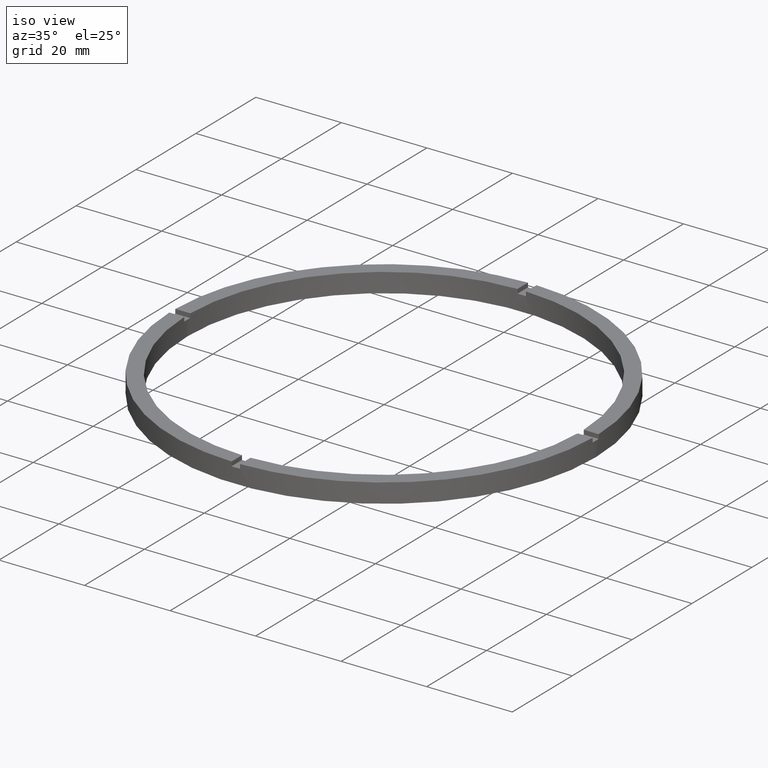
[diagram: clean part render]
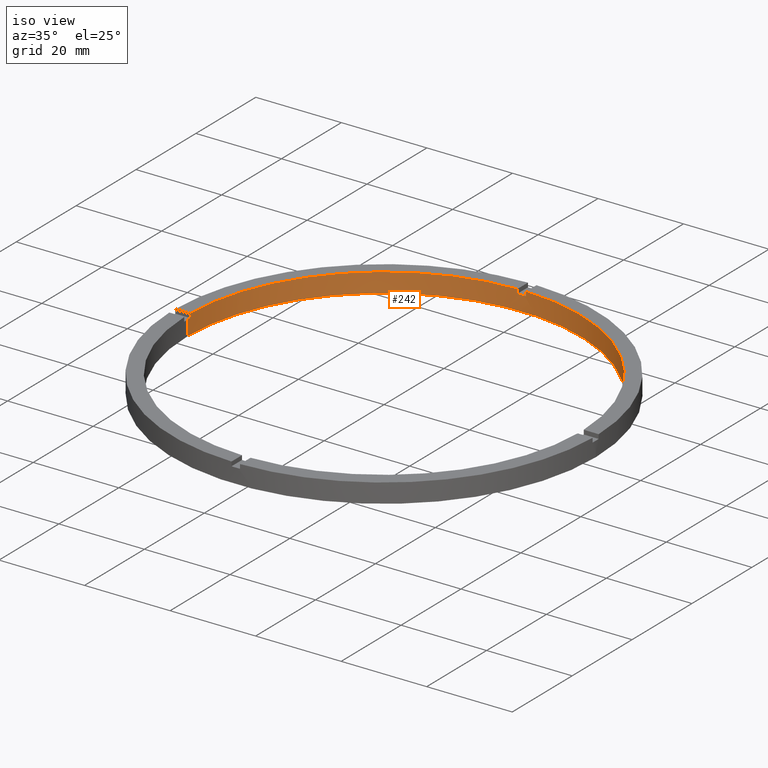
[diagram: same view with one face highlighted and labeled with its STEP entity id]
A machine part, iso view. The second image highlights one B-rep face of the part: STEP entity #242.
In plain terms, the highlighted cylindrical surface (partial cylindrical patch) has radius 46 mm, axis along (-0, -0, -1).
Its self-contained STEP definition (entity closure, byte-faithful):
#19 = CARTESIAN_POINT ( 'NONE',  ( 46.00000000000000000, 5.633375276077824704E-15, 0.000000000000000000 ) ) ;
#26 = ORIENTED_EDGE ( 'NONE', *, *, #469, .F. ) ;
#32 = CARTESIAN_POINT ( 'NONE',  ( 0.9999999999999733546, 45.98912915026767223, 4.500000000000000000 ) ) ;
#37 = EDGE_CURVE ( 'NONE', #638, #750, #271, .T. ) ;
#40 = EDGE_CURVE ( 'NONE', #169, #633, #507, .T. ) ;
#47 = AXIS2_PLACEMENT_3D ( 'NONE', #425, #534, #167 ) ;
#53 = DIRECTION ( 'NONE',  ( -0.000000000000000000, -0.000000000000000000, -1.000000000000000000 ) ) ;
#58 = CARTESIAN_POINT ( 'NONE',  ( 0.000000000000000000, 0.000000000000000000, 3.499999999999999556 ) ) ;
#65 = EDGE_CURVE ( 'NONE', #360, #742, #515, .T. ) ;
#72 = DIRECTION ( 'NONE',  ( 1.000000000000000000, 0.000000000000000000, 0.000000000000000000 ) ) ;
#74 = CARTESIAN_POINT ( 'NONE',  ( -46.00000000000000000, 0.000000000000000000, 3.499999999999999556 ) ) ;
#96 = DIRECTION ( 'NONE',  ( 0.000000000000000000, -0.000000000000000000, 1.000000000000000000 ) ) ;
#99 = EDGE_CURVE ( 'NONE', #614, #633, #457, .T. ) ;
#100 = DIRECTION ( 'NONE',  ( 1.000000000000000000, 0.000000000000000000, 0.000000000000000000 ) ) ;
#111 = CARTESIAN_POINT ( 'NONE',  ( 0.9999999999999733546, 45.98912915026767223, 3.499999999999999556 ) ) ;
#117 = AXIS2_PLACEMENT_3D ( 'NONE', #700, #443, #145 ) ;
#118 = CARTESIAN_POINT ( 'NONE',  ( -45.98912915026767223, 0.9999999999999696909, 4.500000000000000000 ) ) ;
#120 = ORIENTED_EDGE ( 'NONE', *, *, #124, .F. ) ;
#124 = EDGE_CURVE ( 'NONE', #360, #750, #722, .T. ) ;
#139 = CYLINDRICAL_SURFACE ( 'NONE', #47, 46.00000000000000000 ) ;
#142 = CARTESIAN_POINT ( 'NONE',  ( -1.000000000000026645, 45.98912915026767223, 4.500000000000000000 ) ) ;
#145 = DIRECTION ( 'NONE',  ( 1.000000000000000000, 0.000000000000000000, 0.000000000000000000 ) ) ;
#149 = DIRECTION ( 'NONE',  ( 0.000000000000000000, 0.000000000000000000, 1.000000000000000000 ) ) ;
#167 = DIRECTION ( 'NONE',  ( -1.000000000000000000, 0.000000000000000000, 0.000000000000000000 ) ) ;
#169 = VERTEX_POINT ( 'NONE', #19 ) ;
#183 = LINE ( 'NONE', #713, #458 ) ;
#187 = VECTOR ( 'NONE', #53, 1000.000000000000000 ) ;
#189 = VECTOR ( 'NONE', #546, 1000.000000000000000 ) ;
#216 = CARTESIAN_POINT ( 'NONE',  ( 46.00000000000000000, 5.633375276077824704E-15, 3.499999999999999556 ) ) ;
#225 = AXIS2_PLACEMENT_3D ( 'NONE', #754, #149, #761 ) ;
#231 = VERTEX_POINT ( 'NONE', #245 ) ;
#242 = ADVANCED_FACE ( 'NONE', ( #399 ), #139, .F. ) ;
#245 = CARTESIAN_POINT ( 'NONE',  ( -1.000000000000026645, 45.98912915026767223, 3.499999999999999556 ) ) ;
#255 = ORIENTED_EDGE ( 'NONE', *, *, #430, .F. ) ;
#260 = ORIENTED_EDGE ( 'NONE', *, *, #314, .T. ) ;
#267 = ORIENTED_EDGE ( 'NONE', *, *, #99, .T. ) ;
#271 = CIRCLE ( 'NONE', #225, 46.00000000000000000 ) ;
#272 = VERTEX_POINT ( 'NONE', #111 ) ;
#281 = ORIENTED_EDGE ( 'NONE', *, *, #651, .T. ) ;
#314 = EDGE_CURVE ( 'NONE', #272, #231, #698, .T. ) ;
#322 = LINE ( 'NONE', #32, #324 ) ;
#324 = VECTOR ( 'NONE', #330, 1000.000000000000000 ) ;
#330 = DIRECTION ( 'NONE',  ( 0.000000000000000000, 0.000000000000000000, 1.000000000000000000 ) ) ;
#335 = DIRECTION ( 'NONE',  ( 0.000000000000000000, 0.000000000000000000, 1.000000000000000000 ) ) ;
#339 = DIRECTION ( 'NONE',  ( 0.000000000000000000, 0.000000000000000000, 1.000000000000000000 ) ) ;
#343 = EDGE_CURVE ( 'NONE', #643, #614, #677, .T. ) ;
#350 = DIRECTION ( 'NONE',  ( -0.000000000000000000, -0.000000000000000000, -1.000000000000000000 ) ) ;
#357 = ORIENTED_EDGE ( 'NONE', *, *, #343, .T. ) ;
#360 = VERTEX_POINT ( 'NONE', #373 ) ;
#373 = CARTESIAN_POINT ( 'NONE',  ( 45.98912915026767934, 0.9999999999998445688, 4.500000000000000000 ) ) ;
#389 = CARTESIAN_POINT ( 'NONE',  ( -46.00000000000000000, 0.000000000000000000, 4.500000000000000000 ) ) ;
#391 = EDGE_CURVE ( 'NONE', #495, #231, #681, .T. ) ;
#397 = DIRECTION ( 'NONE',  ( 0.000000000000000000, 0.000000000000000000, 1.000000000000000000 ) ) ;
#399 = FACE_OUTER_BOUND ( 'NONE', #484, .T. ) ;
#400 = ORIENTED_EDGE ( 'NONE', *, *, #65, .T. ) ;
#416 = ORIENTED_EDGE ( 'NONE', *, *, #729, .F. ) ;
#425 = CARTESIAN_POINT ( 'NONE',  ( 0.000000000000000000, 0.000000000000000000, 4.500000000000000000 ) ) ;
#430 = EDGE_CURVE ( 'NONE', #638, #169, #183, .T. ) ;
#439 = CIRCLE ( 'NONE', #736, 46.00000000000000000 ) ;
#443 = DIRECTION ( 'NONE',  ( 0.000000000000000000, 0.000000000000000000, 1.000000000000000000 ) ) ;
#452 = CARTESIAN_POINT ( 'NONE',  ( 0.000000000000000000, 0.000000000000000000, 4.500000000000000000 ) ) ;
#454 = LINE ( 'NONE', #118, #189 ) ;
#457 = LINE ( 'NONE', #389, #728 ) ;
#458 = VECTOR ( 'NONE', #688, 1000.000000000000000 ) ;
#469 = EDGE_CURVE ( 'NONE', #643, #471, #454, .T. ) ;
#471 = VERTEX_POINT ( 'NONE', #526 ) ;
#472 = AXIS2_PLACEMENT_3D ( 'NONE', #58, #397, #579 ) ;
#484 = EDGE_LOOP ( 'NONE', ( #255, #653, #120, #400, #416, #260, #525, #281, #26, #357, #267, #667 ) ) ;
#495 = VERTEX_POINT ( 'NONE', #604 ) ;
#507 = CIRCLE ( 'NONE', #674, 46.00000000000000000 ) ;
#515 = CIRCLE ( 'NONE', #117, 46.00000000000000000 ) ;
#521 = DIRECTION ( 'NONE',  ( -0.000000000000000000, -0.000000000000000000, -1.000000000000000000 ) ) ;
#525 = ORIENTED_EDGE ( 'NONE', *, *, #391, .F. ) ;
#526 = CARTESIAN_POINT ( 'NONE',  ( -45.98912915026767223, 0.9999999999999696909, 4.500000000000000000 ) ) ;
#534 = DIRECTION ( 'NONE',  ( -0.000000000000000000, -0.000000000000000000, -1.000000000000000000 ) ) ;
#546 = DIRECTION ( 'NONE',  ( 0.000000000000000000, 0.000000000000000000, 1.000000000000000000 ) ) ;
#560 = CARTESIAN_POINT ( 'NONE',  ( 0.9999999999999733546, 45.98912915026767223, 4.500000000000000000 ) ) ;
#573 = CARTESIAN_POINT ( 'NONE',  ( -45.98912915026767223, 0.9999999999999696909, 3.499999999999999556 ) ) ;
#574 = DIRECTION ( 'NONE',  ( 1.000000000000000000, 0.000000000000000000, 0.000000000000000000 ) ) ;
#579 = DIRECTION ( 'NONE',  ( 1.000000000000000000, 0.000000000000000000, 0.000000000000000000 ) ) ;
#582 = CARTESIAN_POINT ( 'NONE',  ( 0.000000000000000000, 0.000000000000000000, 0.000000000000000000 ) ) ;
#604 = CARTESIAN_POINT ( 'NONE',  ( -1.000000000000026645, 45.98912915026767223, 4.500000000000000000 ) ) ;
#614 = VERTEX_POINT ( 'NONE', #74 ) ;
#633 = VERTEX_POINT ( 'NONE', #744 ) ;
#638 = VERTEX_POINT ( 'NONE', #216 ) ;
#643 = VERTEX_POINT ( 'NONE', #573 ) ;
#644 = AXIS2_PLACEMENT_3D ( 'NONE', #779, #96, #574 ) ;
#651 = EDGE_CURVE ( 'NONE', #495, #471, #439, .T. ) ;
#653 = ORIENTED_EDGE ( 'NONE', *, *, #37, .T. ) ;
#667 = ORIENTED_EDGE ( 'NONE', *, *, #40, .F. ) ;
#674 = AXIS2_PLACEMENT_3D ( 'NONE', #582, #339, #72 ) ;
#677 = CIRCLE ( 'NONE', #472, 46.00000000000000000 ) ;
#681 = LINE ( 'NONE', #142, #701 ) ;
#688 = DIRECTION ( 'NONE',  ( -0.000000000000000000, -0.000000000000000000, -1.000000000000000000 ) ) ;
#696 = CARTESIAN_POINT ( 'NONE',  ( 45.98912915026767934, 0.9999999999998445688, 4.500000000000000000 ) ) ;
#698 = CIRCLE ( 'NONE', #644, 46.00000000000000000 ) ;
#700 = CARTESIAN_POINT ( 'NONE',  ( 0.000000000000000000, 0.000000000000000000, 4.500000000000000000 ) ) ;
#701 = VECTOR ( 'NONE', #350, 1000.000000000000000 ) ;
#713 = CARTESIAN_POINT ( 'NONE',  ( 46.00000000000000000, 5.633375276077824704E-15, 4.500000000000000000 ) ) ;
#722 = LINE ( 'NONE', #696, #187 ) ;
#728 = VECTOR ( 'NONE', #521, 1000.000000000000000 ) ;
#729 = EDGE_CURVE ( 'NONE', #272, #742, #322, .T. ) ;
#736 = AXIS2_PLACEMENT_3D ( 'NONE', #452, #335, #100 ) ;
#742 = VERTEX_POINT ( 'NONE', #560 ) ;
#743 = CARTESIAN_POINT ( 'NONE',  ( 45.98912915026767934, 0.9999999999998445688, 3.499999999999999556 ) ) ;
#744 = CARTESIAN_POINT ( 'NONE',  ( -46.00000000000000000, 0.000000000000000000, 0.000000000000000000 ) ) ;
#750 = VERTEX_POINT ( 'NONE', #743 ) ;
#754 = CARTESIAN_POINT ( 'NONE',  ( 0.000000000000000000, 0.000000000000000000, 3.499999999999999556 ) ) ;
#761 = DIRECTION ( 'NONE',  ( 1.000000000000000000, 0.000000000000000000, 0.000000000000000000 ) ) ;
#779 = CARTESIAN_POINT ( 'NONE',  ( 0.000000000000000000, 0.000000000000000000, 3.499999999999999556 ) ) ;